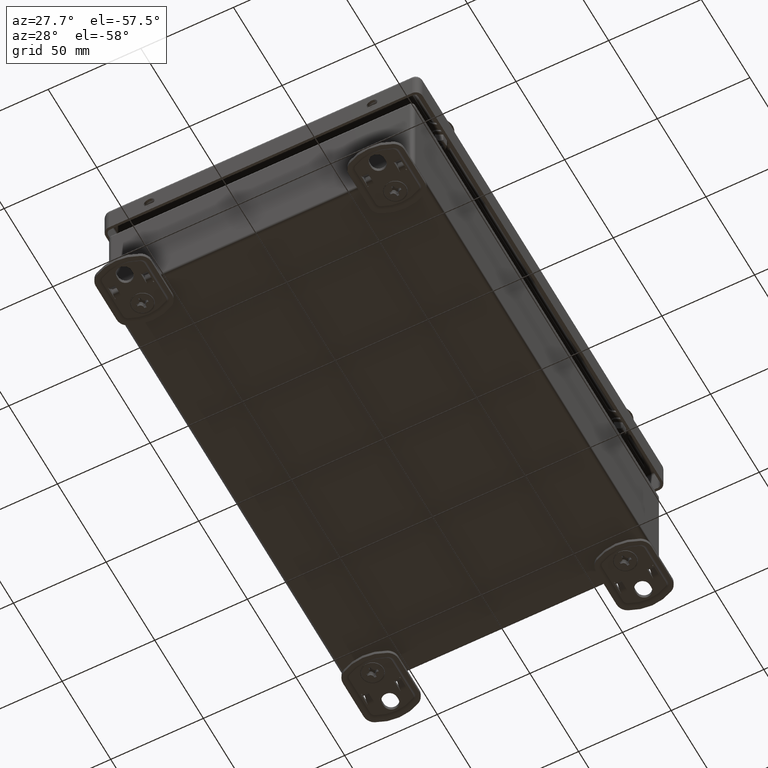
[diagram: clean part render]
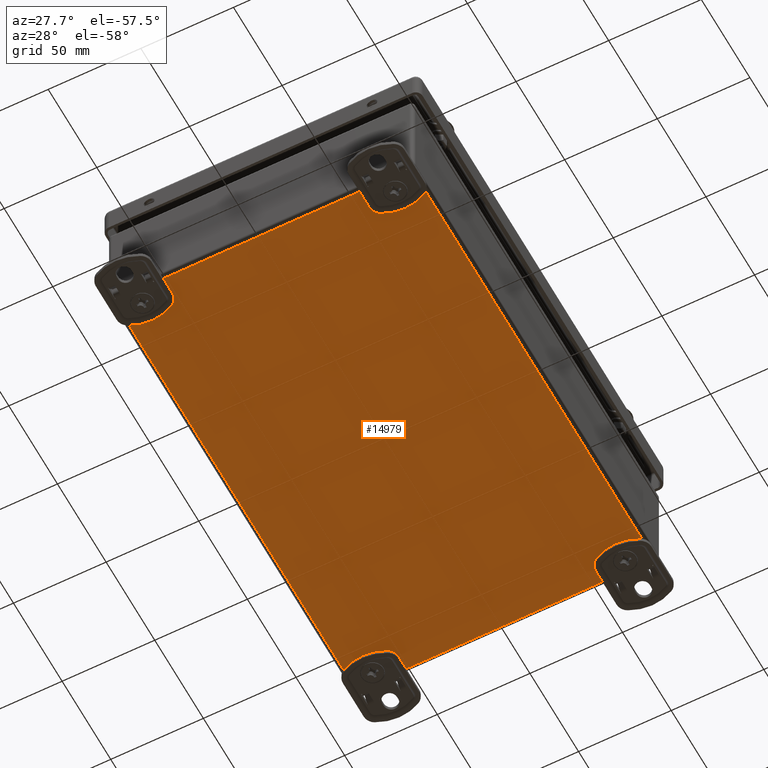
[diagram: same view with one face highlighted and labeled with its STEP entity id]
A machine part, auxiliary view. The second image highlights one B-rep face of the part: STEP entity #14979.
In plain terms, the highlighted planar face has unit normal (0, 0, 1).
Its self-contained STEP definition (entity closure, byte-faithful):
#394=FACE_BOUND('',#3310,.T.);
#395=FACE_BOUND('',#3311,.T.);
#396=FACE_BOUND('',#3312,.T.);
#397=FACE_BOUND('',#3313,.T.);
#2337=FACE_OUTER_BOUND('',#3309,.T.);
#3309=EDGE_LOOP('',(#10814,#10815,#10816,#10817));
#3310=EDGE_LOOP('',(#10818,#10819,#10820,#10821,#10822,#10823));
#3311=EDGE_LOOP('',(#10824,#10825,#10826,#10827,#10828,#10829));
#3312=EDGE_LOOP('',(#10830,#10831,#10832,#10833,#10834,#10835));
#3313=EDGE_LOOP('',(#10836,#10837,#10838,#10839,#10840,#10841));
#4152=LINE('',#22919,#5206);
#4156=LINE('',#22927,#5210);
#4159=LINE('',#22933,#5213);
#4162=LINE('',#22939,#5216);
#4165=LINE('',#22945,#5219);
#4168=LINE('',#22950,#5222);
#4170=LINE('',#22955,#5224);
#4174=LINE('',#22963,#5228);
#4177=LINE('',#22969,#5231);
#4180=LINE('',#22975,#5234);
#4183=LINE('',#22981,#5237);
#4186=LINE('',#22986,#5240);
#4188=LINE('',#22991,#5242);
#4192=LINE('',#22999,#5246);
#4195=LINE('',#23005,#5249);
#4198=LINE('',#23011,#5252);
#4201=LINE('',#23017,#5255);
#4204=LINE('',#23022,#5258);
#4206=LINE('',#23027,#5260);
#4210=LINE('',#23035,#5264);
#4213=LINE('',#23041,#5267);
#4216=LINE('',#23047,#5270);
#4219=LINE('',#23053,#5273);
#4222=LINE('',#23058,#5276);
#4508=LINE('',#24545,#5562);
#4509=LINE('',#24549,#5563);
#4510=LINE('',#24551,#5564);
#4511=LINE('',#24552,#5565);
#5206=VECTOR('',#18015,0.393700787401575);
#5210=VECTOR('',#18021,0.393700787401575);
#5213=VECTOR('',#18026,0.393700787401575);
#5216=VECTOR('',#18031,0.393700787401575);
#5219=VECTOR('',#18036,0.393700787401575);
#5222=VECTOR('',#18041,0.393700787401575);
#5224=VECTOR('',#18045,0.393700787401575);
#5228=VECTOR('',#18051,0.393700787401575);
#5231=VECTOR('',#18056,0.393700787401575);
#5234=VECTOR('',#18061,0.393700787401575);
#5237=VECTOR('',#18066,0.393700787401575);
#5240=VECTOR('',#18071,0.393700787401575);
#5242=VECTOR('',#18075,0.393700787401575);
#5246=VECTOR('',#18081,0.393700787401575);
#5249=VECTOR('',#18086,0.393700787401575);
#5252=VECTOR('',#18091,0.393700787401575);
#5255=VECTOR('',#18096,0.393700787401575);
#5258=VECTOR('',#18101,0.393700787401575);
#5260=VECTOR('',#18105,0.393700787401575);
#5264=VECTOR('',#18111,0.393700787401575);
#5267=VECTOR('',#18116,0.393700787401575);
#5270=VECTOR('',#18121,0.393700787401575);
#5273=VECTOR('',#18126,0.393700787401575);
#5276=VECTOR('',#18131,0.393700787401575);
#5562=VECTOR('',#18991,0.393700787401575);
#5563=VECTOR('',#18996,0.393700787401575);
#5564=VECTOR('',#18997,0.393700787401575);
#5565=VECTOR('',#18998,0.393700787401575);
#6260=VERTEX_POINT('',#22917);
#6261=VERTEX_POINT('',#22918);
#6264=VERTEX_POINT('',#22926);
#6266=VERTEX_POINT('',#22932);
#6268=VERTEX_POINT('',#22938);
#6270=VERTEX_POINT('',#22944);
#6272=VERTEX_POINT('',#22953);
#6273=VERTEX_POINT('',#22954);
#6276=VERTEX_POINT('',#22962);
#6278=VERTEX_POINT('',#22968);
#6280=VERTEX_POINT('',#22974);
#6282=VERTEX_POINT('',#22980);
#6284=VERTEX_POINT('',#22989);
#6285=VERTEX_POINT('',#22990);
#6288=VERTEX_POINT('',#22998);
#6290=VERTEX_POINT('',#23004);
#6292=VERTEX_POINT('',#23010);
#6294=VERTEX_POINT('',#23016);
#6296=VERTEX_POINT('',#23025);
#6297=VERTEX_POINT('',#23026);
#6300=VERTEX_POINT('',#23034);
#6302=VERTEX_POINT('',#23040);
#6304=VERTEX_POINT('',#23046);
#6306=VERTEX_POINT('',#23052);
#6626=VERTEX_POINT('',#24532);
#6629=VERTEX_POINT('',#24544);
#6630=VERTEX_POINT('',#24548);
#6631=VERTEX_POINT('',#24550);
#7630=EDGE_CURVE('',#6260,#6261,#4152,.T.);
#7634=EDGE_CURVE('',#6264,#6260,#4156,.T.);
#7637=EDGE_CURVE('',#6266,#6264,#4159,.T.);
#7640=EDGE_CURVE('',#6268,#6266,#4162,.T.);
#7643=EDGE_CURVE('',#6261,#6270,#4165,.T.);
#7646=EDGE_CURVE('',#6270,#6268,#4168,.T.);
#7648=EDGE_CURVE('',#6272,#6273,#4170,.T.);
#7652=EDGE_CURVE('',#6276,#6272,#4174,.T.);
#7655=EDGE_CURVE('',#6278,#6276,#4177,.T.);
#7658=EDGE_CURVE('',#6280,#6278,#4180,.T.);
#7661=EDGE_CURVE('',#6273,#6282,#4183,.T.);
#7664=EDGE_CURVE('',#6282,#6280,#4186,.T.);
#7666=EDGE_CURVE('',#6284,#6285,#4188,.T.);
#7670=EDGE_CURVE('',#6288,#6284,#4192,.T.);
#7673=EDGE_CURVE('',#6290,#6288,#4195,.T.);
#7676=EDGE_CURVE('',#6292,#6290,#4198,.T.);
#7679=EDGE_CURVE('',#6285,#6294,#4201,.T.);
#7682=EDGE_CURVE('',#6294,#6292,#4204,.T.);
#7684=EDGE_CURVE('',#6296,#6297,#4206,.T.);
#7688=EDGE_CURVE('',#6300,#6296,#4210,.T.);
#7691=EDGE_CURVE('',#6302,#6300,#4213,.T.);
#7694=EDGE_CURVE('',#6304,#6302,#4216,.T.);
#7697=EDGE_CURVE('',#6297,#6306,#4219,.T.);
#7700=EDGE_CURVE('',#6306,#6304,#4222,.T.);
#8175=EDGE_CURVE('',#6626,#6629,#4508,.T.);
#8177=EDGE_CURVE('',#6630,#6626,#4509,.T.);
#8178=EDGE_CURVE('',#6631,#6630,#4510,.T.);
#8179=EDGE_CURVE('',#6629,#6631,#4511,.T.);
#10814=ORIENTED_EDGE('',*,*,#8177,.F.);
#10815=ORIENTED_EDGE('',*,*,#8178,.F.);
#10816=ORIENTED_EDGE('',*,*,#8179,.F.);
#10817=ORIENTED_EDGE('',*,*,#8175,.F.);
#10818=ORIENTED_EDGE('',*,*,#7637,.T.);
#10819=ORIENTED_EDGE('',*,*,#7634,.T.);
#10820=ORIENTED_EDGE('',*,*,#7630,.T.);
#10821=ORIENTED_EDGE('',*,*,#7643,.T.);
#10822=ORIENTED_EDGE('',*,*,#7646,.T.);
#10823=ORIENTED_EDGE('',*,*,#7640,.T.);
#10824=ORIENTED_EDGE('',*,*,#7655,.T.);
#10825=ORIENTED_EDGE('',*,*,#7652,.T.);
#10826=ORIENTED_EDGE('',*,*,#7648,.T.);
#10827=ORIENTED_EDGE('',*,*,#7661,.T.);
#10828=ORIENTED_EDGE('',*,*,#7664,.T.);
#10829=ORIENTED_EDGE('',*,*,#7658,.T.);
#10830=ORIENTED_EDGE('',*,*,#7673,.T.);
#10831=ORIENTED_EDGE('',*,*,#7670,.T.);
#10832=ORIENTED_EDGE('',*,*,#7666,.T.);
#10833=ORIENTED_EDGE('',*,*,#7679,.T.);
#10834=ORIENTED_EDGE('',*,*,#7682,.T.);
#10835=ORIENTED_EDGE('',*,*,#7676,.T.);
#10836=ORIENTED_EDGE('',*,*,#7691,.T.);
#10837=ORIENTED_EDGE('',*,*,#7688,.T.);
#10838=ORIENTED_EDGE('',*,*,#7684,.T.);
#10839=ORIENTED_EDGE('',*,*,#7697,.T.);
#10840=ORIENTED_EDGE('',*,*,#7700,.T.);
#10841=ORIENTED_EDGE('',*,*,#7694,.T.);
#14595=PLANE('',#16396);
#14979=ADVANCED_FACE('',(#2337,#394,#395,#396,#397),#14595,.F.);
#16396=AXIS2_PLACEMENT_3D('',#24547,#18994,#18995);
#18015=DIRECTION('',(1.,-3.25429695590814E-16,0.));
#18021=DIRECTION('',(0.5,-0.866025403784439,0.));
#18026=DIRECTION('',(-0.5,-0.866025403784439,0.));
#18031=DIRECTION('',(-1.,1.52744235934653E-17,0.));
#18036=DIRECTION('',(0.5,0.866025403784439,0.));
#18041=DIRECTION('',(-0.5,0.866025403784439,0.));
#18045=DIRECTION('',(1.,-3.25429695590814E-16,0.));
#18051=DIRECTION('',(0.5,-0.866025403784439,0.));
#18056=DIRECTION('',(-0.5,-0.866025403784439,0.));
#18061=DIRECTION('',(-1.,1.52744235934653E-17,0.));
#18066=DIRECTION('',(0.5,0.866025403784439,0.));
#18071=DIRECTION('',(-0.5,0.866025403784439,0.));
#18075=DIRECTION('',(-1.,-1.18659514259248E-16,0.));
#18081=DIRECTION('',(-0.5,0.866025403784438,0.));
#18086=DIRECTION('',(0.5,0.866025403784439,0.));
#18091=DIRECTION('',(1.,4.28814786256597E-16,0.));
#18096=DIRECTION('',(-0.5,-0.866025403784439,0.));
#18101=DIRECTION('',(0.5,-0.866025403784438,0.));
#18105=DIRECTION('',(-1.,-1.18659514259248E-16,0.));
#18111=DIRECTION('',(-0.5,0.866025403784438,0.));
#18116=DIRECTION('',(0.5,0.866025403784439,0.));
#18121=DIRECTION('',(1.,4.28814786256597E-16,0.));
#18126=DIRECTION('',(-0.5,-0.866025403784439,0.));
#18131=DIRECTION('',(0.5,-0.866025403784438,0.));
#18991=DIRECTION('',(1.,-7.06171915883213E-48,0.));
#18994=DIRECTION('center_axis',(0.,0.,1.));
#18995=DIRECTION('ref_axis',(1.,0.,0.));
#18996=DIRECTION('',(7.12594079423277E-33,-1.,0.));
#18997=DIRECTION('',(-1.,7.06171915883213E-48,0.));
#18998=DIRECTION('',(1.02221299766109E-47,1.,0.));
#22917=CARTESIAN_POINT('',(2.58130398615229,4.47292913385827,0.));
#22918=CARTESIAN_POINT('',(2.79269601384771,4.47292913385827,0.));
#22919=CARTESIAN_POINT('',(1.29065199307615,4.47292913385827,0.));
#22926=CARTESIAN_POINT('',(2.47560797230459,4.656,0.));
#22927=CARTESIAN_POINT('',(3.1742105457716,3.44598484845676,0.));
#22932=CARTESIAN_POINT('',(2.58130398615229,4.83907086614173,0.));
#22933=CARTESIAN_POINT('',(1.21095141268528,2.4655505846141,0.));
#22938=CARTESIAN_POINT('',(2.79269601384771,4.83907086614173,0.));
#22939=CARTESIAN_POINT('',(1.39634800692385,4.83907086614173,0.));
#22944=CARTESIAN_POINT('',(2.89839202769541,4.656,0.));
#22945=CARTESIAN_POINT('',(1.47519144730455,2.1909442854015,0.));
#22950=CARTESIAN_POINT('',(3.54414659423857,3.53752028152763,0.));
#22953=CARTESIAN_POINT('',(-2.79269601384771,4.47292913385827,0.));
#22954=CARTESIAN_POINT('',(-2.58130398615229,4.47292913385827,0.));
#22955=CARTESIAN_POINT('',(-1.39634800692385,4.47292913385827,0.));
#22962=CARTESIAN_POINT('',(-2.89839202769541,4.656,0.));
#22963=CARTESIAN_POINT('',(-1.5280394542284,2.28247971847237,0.));
#22968=CARTESIAN_POINT('',(-2.79269601384771,4.83907086614173,0.));
#22969=CARTESIAN_POINT('',(-3.49129858731472,3.6290557145985,0.));
#22974=CARTESIAN_POINT('',(-2.58130398615229,4.83907086614173,0.));
#22975=CARTESIAN_POINT('',(-1.29065199307615,4.83907086614173,0.));
#22980=CARTESIAN_POINT('',(-2.47560797230459,4.656,0.));
#22981=CARTESIAN_POINT('',(-3.22705855269545,3.3544494153859,0.));
#22986=CARTESIAN_POINT('',(-1.15810340576143,2.37401515154324,0.));
#22989=CARTESIAN_POINT('',(2.79269601384771,-4.47292913385827,0.));
#22990=CARTESIAN_POINT('',(2.58130398615229,-4.47292913385827,0.));
#22991=CARTESIAN_POINT('',(1.39634800692385,-4.47292913385827,0.));
#22998=CARTESIAN_POINT('',(2.89839202769541,-4.656,0.));
#22999=CARTESIAN_POINT('',(1.5280394542284,-2.28247971847237,0.));
#23004=CARTESIAN_POINT('',(2.79269601384771,-4.83907086614173,0.));
#23005=CARTESIAN_POINT('',(3.49129858731472,-3.62905571459849,-5.46369598732853E-18));
#23010=CARTESIAN_POINT('',(2.58130398615229,-4.83907086614173,0.));
#23011=CARTESIAN_POINT('',(1.29065199307615,-4.83907086614173,0.));
#23016=CARTESIAN_POINT('',(2.47560797230459,-4.656,0.));
#23017=CARTESIAN_POINT('',(3.22705855269545,-3.3544494153859,0.));
#23022=CARTESIAN_POINT('',(1.15810340576143,-2.37401515154324,-5.46369598732853E-18));
#23025=CARTESIAN_POINT('',(-2.58130398615229,-4.47292913385827,0.));
#23026=CARTESIAN_POINT('',(-2.79269601384771,-4.47292913385827,0.));
#23027=CARTESIAN_POINT('',(-1.29065199307615,-4.47292913385827,0.));
#23034=CARTESIAN_POINT('',(-2.47560797230459,-4.656,0.));
#23035=CARTESIAN_POINT('',(-3.1742105457716,-3.44598484845676,0.));
#23040=CARTESIAN_POINT('',(-2.58130398615229,-4.83907086614173,0.));
#23041=CARTESIAN_POINT('',(-1.21095141268528,-2.4655505846141,-5.46369598732853E-18));
#23046=CARTESIAN_POINT('',(-2.79269601384771,-4.83907086614173,0.));
#23047=CARTESIAN_POINT('',(-1.39634800692385,-4.83907086614173,0.));
#23052=CARTESIAN_POINT('',(-2.89839202769541,-4.656,0.));
#23053=CARTESIAN_POINT('',(-1.47519144730455,-2.1909442854015,0.));
#23058=CARTESIAN_POINT('',(-3.54414659423857,-3.53752028152763,-5.46369598732853E-18));
#24532=CARTESIAN_POINT('',(-3.166,-4.916,0.));
#24544=CARTESIAN_POINT('',(3.166,-4.916,0.));
#24545=CARTESIAN_POINT('',(-1.70611134877384E-47,-4.916,0.));
#24547=CARTESIAN_POINT('Origin',(0.,0.,0.));
#24548=CARTESIAN_POINT('',(-3.166,4.916,0.));
#24549=CARTESIAN_POINT('',(-3.166,1.7937641140748,0.));
#24550=CARTESIAN_POINT('',(3.166,4.916,0.));
#24551=CARTESIAN_POINT('',(1.70611134877384E-47,4.916,0.));
#24552=CARTESIAN_POINT('',(3.166,-1.57523022939574E-47,0.));